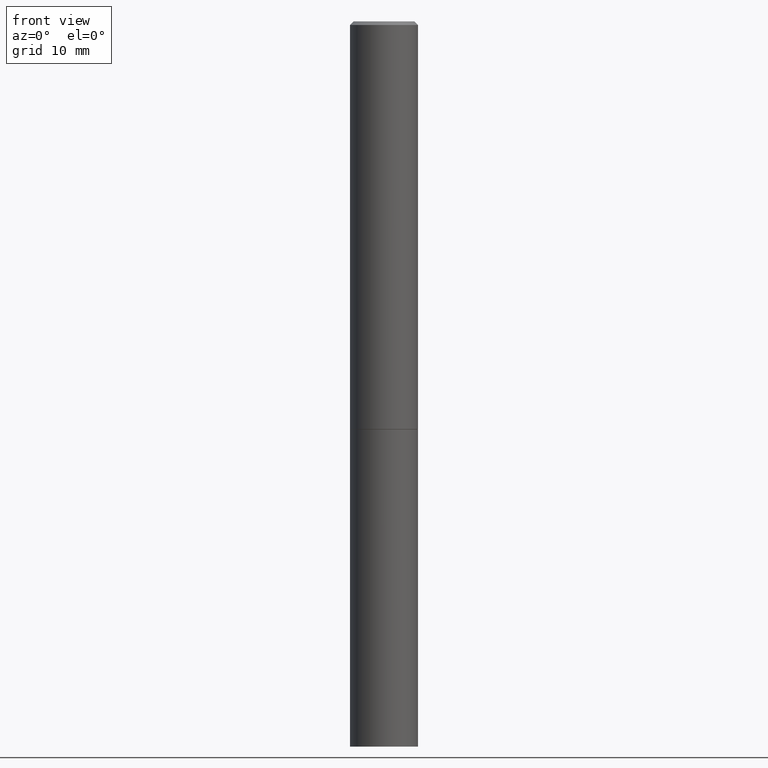
[diagram: clean part render]
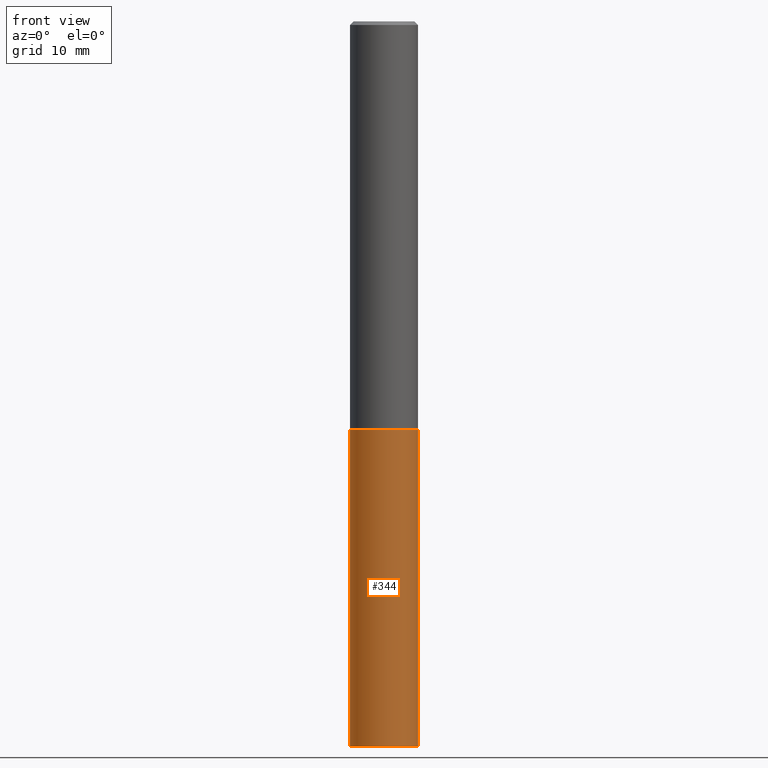
[diagram: same view with one face highlighted and labeled with its STEP entity id]
A machine part, front view. The second image highlights one B-rep face of the part: STEP entity #344.
In plain terms, the highlighted cylindrical surface (edge-blend (fillet) strip) has radius 4.7625 mm, axis along (-0, 0, 1).
Its self-contained STEP definition (entity closure, byte-faithful):
#3 = CYLINDRICAL_SURFACE ( 'NONE', #281, 0.1875000000000000278 ) ;
#26 = EDGE_CURVE ( 'NONE', #339, #234, #36, .T. ) ;
#30 = DIRECTION ( 'NONE',  ( 1.000000000000000000, -6.982962677686265922E-15, 4.876176775795935793E-29 ) ) ;
#36 = CIRCLE ( 'NONE', #301, 0.1875000000000000278 ) ;
#47 = VERTEX_POINT ( 'NONE', #144 ) ;
#63 = DIRECTION ( 'NONE',  ( -2.445468806185136877E-29, 3.491481338843145188E-15, 1.000000000000000000 ) ) ;
#82 = ORIENTED_EDGE ( 'NONE', *, *, #380, .F. ) ;
#87 = CIRCLE ( 'NONE', #302, 0.1875000000000000278 ) ;
#90 = CARTESIAN_POINT ( 'NONE',  ( -0.1875000000000000278, -9.578611554334641752E-15, -2.250000000000000000 ) ) ;
#114 = CARTESIAN_POINT ( 'NONE',  ( 0.000000000000000000, 0.000000000000000000, 0.000000000000000000 ) ) ;
#135 = EDGE_LOOP ( 'NONE', ( #82, #291, #346, #216 ) ) ;
#144 = CARTESIAN_POINT ( 'NONE',  ( -0.1874999999999996947, -1.265661985330641048E-14, -4.000000000000000000 ) ) ;
#152 = DIRECTION ( 'NONE',  ( 1.000000000000000000, -6.982962677686261189E-15, 0.000000000000000000 ) ) ;
#170 = VERTEX_POINT ( 'NONE', #303 ) ;
#176 = LINE ( 'NONE', #384, #386 ) ;
#179 = DIRECTION ( 'NONE',  ( -2.445468806185136877E-29, 3.491481338843145188E-15, 1.000000000000000000 ) ) ;
#180 = DIRECTION ( 'NONE',  ( 1.000000000000000000, -6.982962677686266711E-15, 0.000000000000000000 ) ) ;
#216 = ORIENTED_EDGE ( 'NONE', *, *, #26, .F. ) ;
#217 = DIRECTION ( 'NONE',  ( -2.445468806185136597E-29, 3.491481338843145583E-15, 1.000000000000000000 ) ) ;
#234 = VERTEX_POINT ( 'NONE', #246 ) ;
#240 = LINE ( 'NONE', #323, #312 ) ;
#246 = CARTESIAN_POINT ( 'NONE',  ( 0.1875000000000000278, -9.165138514463253457E-15, -2.250000000000000000 ) ) ;
#271 = FACE_OUTER_BOUND ( 'NONE', #135, .T. ) ;
#281 = AXIS2_PLACEMENT_3D ( 'NONE', #114, #328, #30 ) ;
#291 = ORIENTED_EDGE ( 'NONE', *, *, #389, .T. ) ;
#292 = CARTESIAN_POINT ( 'NONE',  ( 9.781875224740546387E-29, -1.396592535537258233E-14, -4.000000000000000000 ) ) ;
#301 = AXIS2_PLACEMENT_3D ( 'NONE', #387, #382, #180 ) ;
#302 = AXIS2_PLACEMENT_3D ( 'NONE', #292, #217, #152 ) ;
#303 = CARTESIAN_POINT ( 'NONE',  ( 0.1874999999999996947, -1.525226872995474292E-14, -4.000000000000000000 ) ) ;
#312 = VECTOR ( 'NONE', #179, 39.37007874015748143 ) ;
#323 = CARTESIAN_POINT ( 'NONE',  ( 0.1875000000000000278, -1.309305502066175008E-15, 9.142831454617381013E-30 ) ) ;
#328 = DIRECTION ( 'NONE',  ( -2.445468806185136597E-29, 3.491481338843145583E-15, 1.000000000000000000 ) ) ;
#339 = VERTEX_POINT ( 'NONE', #90 ) ;
#344 = ADVANCED_FACE ( 'NONE', ( #271 ), #3, .T. ) ;
#346 = ORIENTED_EDGE ( 'NONE', *, *, #376, .T. ) ;
#376 = EDGE_CURVE ( 'NONE', #170, #234, #240, .T. ) ;
#380 = EDGE_CURVE ( 'NONE', #47, #339, #176, .T. ) ;
#382 = DIRECTION ( 'NONE',  ( -2.445468806185136597E-29, 3.491481338843145583E-15, 1.000000000000000000 ) ) ;
#384 = CARTESIAN_POINT ( 'NONE',  ( -0.1875000000000000278, 1.332267629550188046E-15, -9.223003294227947991E-30 ) ) ;
#386 = VECTOR ( 'NONE', #63, 39.37007874015748143 ) ;
#387 = CARTESIAN_POINT ( 'NONE',  ( 5.502304813916557343E-29, -7.855833012397078448E-15, -2.250000000000000000 ) ) ;
#389 = EDGE_CURVE ( 'NONE', #47, #170, #87, .T. ) ;